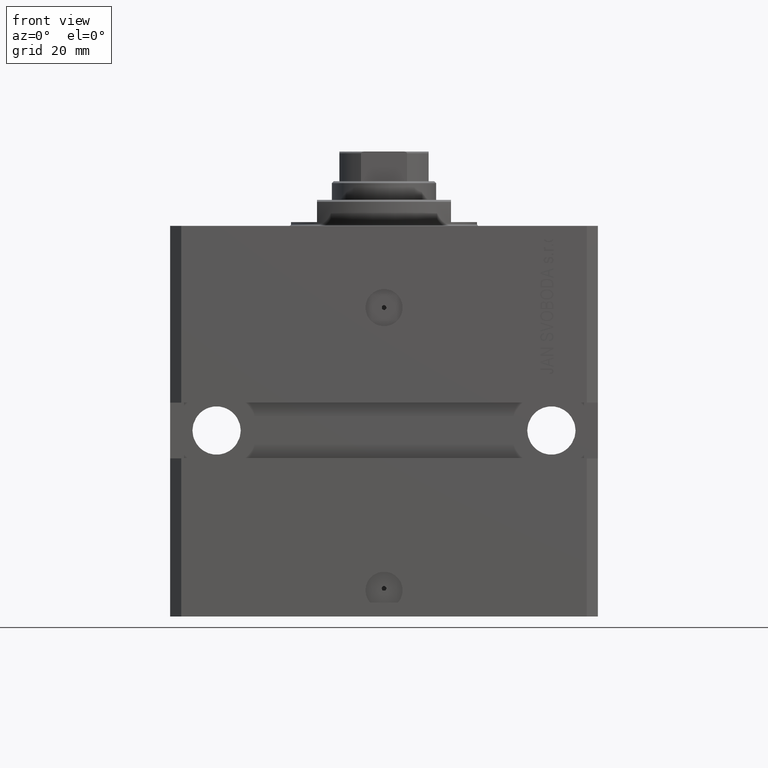
[diagram: clean part render]
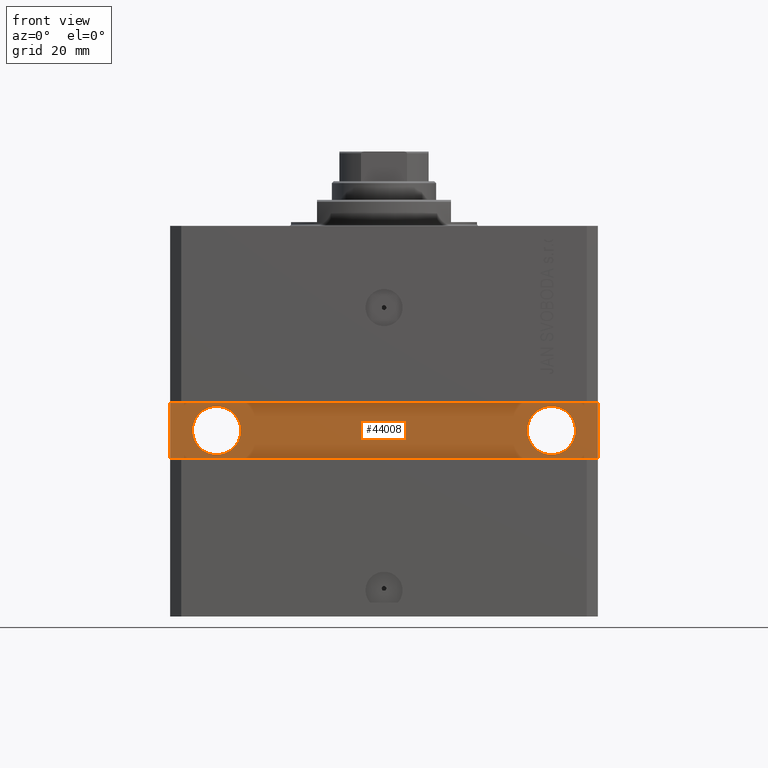
[diagram: same view with one face highlighted and labeled with its STEP entity id]
A machine part, front view. The second image highlights one B-rep face of the part: STEP entity #44008.
In plain terms, the highlighted planar face has unit normal (0, -1, 0).
Its self-contained STEP definition (entity closure, byte-faithful):
#84 = CARTESIAN_POINT ( 'NONE',  ( 4.842396851142260860E-15, -39.99999999999999289, 0.000000000000000000 ) ) ;
#157 = VERTEX_POINT ( 'NONE', #47142 ) ;
#443 = LINE ( 'NONE', #37607, #3342 ) ;
#566 = DIRECTION ( 'NONE',  ( 1.000000000000000000, 1.206764157201257045E-16, 0.000000000000000000 ) ) ;
#610 = CARTESIAN_POINT ( 'NONE',  ( -44.99999999999998579, -40.00000000000000000, -55.00000000000001421 ) ) ;
#926 = CIRCLE ( 'NONE', #42606, 6.499999999999999112 ) ;
#1144 = AXIS2_PLACEMENT_3D ( 'NONE', #610, #31093, #23451 ) ;
#1660 = VECTOR ( 'NONE', #10876, 1000.000000000000000 ) ;
#3342 = VECTOR ( 'NONE', #33665, 1000.000000000000000 ) ;
#3366 = ORIENTED_EDGE ( 'NONE', *, *, #45127, .T. ) ;
#4034 = CARTESIAN_POINT ( 'NONE',  ( -44.99999999999998579, -40.00000000000000000, -55.00000000000001421 ) ) ;
#4282 = VERTEX_POINT ( 'NONE', #32801 ) ;
#4742 = AXIS2_PLACEMENT_3D ( 'NONE', #84, #12097, #566 ) ;
#4954 = VECTOR ( 'NONE', #43314, 1000.000000000000000 ) ;
#4969 = EDGE_CURVE ( 'NONE', #31227, #4282, #30193, .T. ) ;
#6048 = CARTESIAN_POINT ( 'NONE',  ( 38.50000000000001421, -39.99999999999999289, -55.00000000000000000 ) ) ;
#6957 = CARTESIAN_POINT ( 'NONE',  ( 57.50000000000000711, -39.99999999999998579, -62.50000000000000000 ) ) ;
#7637 = EDGE_CURVE ( 'NONE', #20303, #39013, #926, .T. ) ;
#7743 = ORIENTED_EDGE ( 'NONE', *, *, #29121, .F. ) ;
#8579 = EDGE_CURVE ( 'NONE', #11958, #157, #42640, .T. ) ;
#8612 = EDGE_LOOP ( 'NONE', ( #24514, #14703 ) ) ;
#8653 = FACE_BOUND ( 'NONE', #39750, .T. ) ;
#9791 = CIRCLE ( 'NONE', #1144, 6.499999999999999112 ) ;
#10876 = DIRECTION ( 'NONE',  ( 0.000000000000000000, 0.000000000000000000, 1.000000000000000000 ) ) ;
#11233 = EDGE_LOOP ( 'NONE', ( #27381, #3366, #26299, #20491 ) ) ;
#11396 = EDGE_CURVE ( 'NONE', #42509, #31227, #35669, .T. ) ;
#11883 = DIRECTION ( 'NONE',  ( 1.101411730780568590E-16, -1.000000000000000000, 0.000000000000000000 ) ) ;
#11958 = VERTEX_POINT ( 'NONE', #41437 ) ;
#12097 = DIRECTION ( 'NONE',  ( 1.206764157201257045E-16, -1.000000000000000000, 0.000000000000000000 ) ) ;
#12756 = EDGE_CURVE ( 'NONE', #16260, #42509, #443, .T. ) ;
#13870 = CARTESIAN_POINT ( 'NONE',  ( 45.00000000000001421, -39.99999999999999289, -55.00000000000000000 ) ) ;
#14703 = ORIENTED_EDGE ( 'NONE', *, *, #8579, .F. ) ;
#15330 = DIRECTION ( 'NONE',  ( 1.000000000000000000, 0.000000000000000000, 0.000000000000000000 ) ) ;
#16260 = VERTEX_POINT ( 'NONE', #18943 ) ;
#18943 = CARTESIAN_POINT ( 'NONE',  ( 57.50000000000000711, -39.99999999999998579, -47.49999999999997868 ) ) ;
#20303 = VERTEX_POINT ( 'NONE', #6048 ) ;
#20491 = ORIENTED_EDGE ( 'NONE', *, *, #11396, .T. ) ;
#22204 = EDGE_CURVE ( 'NONE', #157, #11958, #9791, .T. ) ;
#23307 = CARTESIAN_POINT ( 'NONE',  ( -57.50000000000000711, -40.00000000000000000, -47.50000000000000711 ) ) ;
#23451 = DIRECTION ( 'NONE',  ( 1.000000000000000000, 0.000000000000000000, 0.000000000000000000 ) ) ;
#24514 = ORIENTED_EDGE ( 'NONE', *, *, #22204, .F. ) ;
#25445 = DIRECTION ( 'NONE',  ( 7.680174481697266334E-17, -1.000000000000000000, 1.232595164407830946E-32 ) ) ;
#25654 = LINE ( 'NONE', #6957, #1660 ) ;
#26299 = ORIENTED_EDGE ( 'NONE', *, *, #12756, .T. ) ;
#27343 = FACE_OUTER_BOUND ( 'NONE', #11233, .T. ) ;
#27381 = ORIENTED_EDGE ( 'NONE', *, *, #4969, .T. ) ;
#28257 = CARTESIAN_POINT ( 'NONE',  ( -57.50000000000000711, -40.00000000000000000, -47.50000000000000711 ) ) ;
#28505 = ORIENTED_EDGE ( 'NONE', *, *, #7637, .F. ) ;
#28744 = CIRCLE ( 'NONE', #42896, 6.499999999999999112 ) ;
#28872 = DIRECTION ( 'NONE',  ( 7.680174481697266334E-17, -1.000000000000000000, 1.232595164407830946E-32 ) ) ;
#29121 = EDGE_CURVE ( 'NONE', #39013, #20303, #28744, .T. ) ;
#29132 = CARTESIAN_POINT ( 'NONE',  ( 45.00000000000001421, -39.99999999999999289, -55.00000000000000000 ) ) ;
#30193 = LINE ( 'NONE', #40815, #41702 ) ;
#30438 = DIRECTION ( 'NONE',  ( 1.000000000000000000, 1.206764157201257045E-16, 0.000000000000000000 ) ) ;
#31093 = DIRECTION ( 'NONE',  ( 1.101411730780568590E-16, -1.000000000000000000, 0.000000000000000000 ) ) ;
#31227 = VERTEX_POINT ( 'NONE', #40654 ) ;
#32406 = AXIS2_PLACEMENT_3D ( 'NONE', #4034, #11883, #15330 ) ;
#32801 = CARTESIAN_POINT ( 'NONE',  ( 57.50000000000000711, -39.99999999999998579, -62.50000000000000000 ) ) ;
#33665 = DIRECTION ( 'NONE',  ( -1.000000000000000000, -1.206764157201257045E-16, -2.413528314402514090E-16 ) ) ;
#35669 = LINE ( 'NONE', #28257, #4954 ) ;
#37607 = CARTESIAN_POINT ( 'NONE',  ( 57.50000000000000711, -39.99999999999998579, -47.49999999999997868 ) ) ;
#38701 = PLANE ( 'NONE',  #4742 ) ;
#39013 = VERTEX_POINT ( 'NONE', #45944 ) ;
#39750 = EDGE_LOOP ( 'NONE', ( #7743, #28505 ) ) ;
#40502 = DIRECTION ( 'NONE',  ( 1.000000000000000000, 0.000000000000000000, 0.000000000000000000 ) ) ;
#40654 = CARTESIAN_POINT ( 'NONE',  ( -57.50000000000000711, -40.00000000000000000, -62.50000000000000000 ) ) ;
#40815 = CARTESIAN_POINT ( 'NONE',  ( -57.50000000000000711, -40.00000000000000000, -62.50000000000000000 ) ) ;
#41437 = CARTESIAN_POINT ( 'NONE',  ( -51.49999999999998579, -40.00000000000000000, -55.00000000000001421 ) ) ;
#41702 = VECTOR ( 'NONE', #30438, 1000.000000000000000 ) ;
#42509 = VERTEX_POINT ( 'NONE', #23307 ) ;
#42606 = AXIS2_PLACEMENT_3D ( 'NONE', #29132, #25445, #40502 ) ;
#42640 = CIRCLE ( 'NONE', #32406, 6.499999999999999112 ) ;
#42896 = AXIS2_PLACEMENT_3D ( 'NONE', #13870, #28872, #43925 ) ;
#43314 = DIRECTION ( 'NONE',  ( 0.000000000000000000, 0.000000000000000000, -1.000000000000000000 ) ) ;
#43925 = DIRECTION ( 'NONE',  ( 1.000000000000000000, 0.000000000000000000, 0.000000000000000000 ) ) ;
#44008 = ADVANCED_FACE ( 'NONE', ( #8653, #45854, #27343 ), #38701, .T. ) ;
#45127 = EDGE_CURVE ( 'NONE', #4282, #16260, #25654, .T. ) ;
#45854 = FACE_BOUND ( 'NONE', #8612, .T. ) ;
#45944 = CARTESIAN_POINT ( 'NONE',  ( 51.50000000000001421, -39.99999999999999289, -55.00000000000000000 ) ) ;
#47142 = CARTESIAN_POINT ( 'NONE',  ( -38.49999999999998579, -40.00000000000000000, -55.00000000000001421 ) ) ;